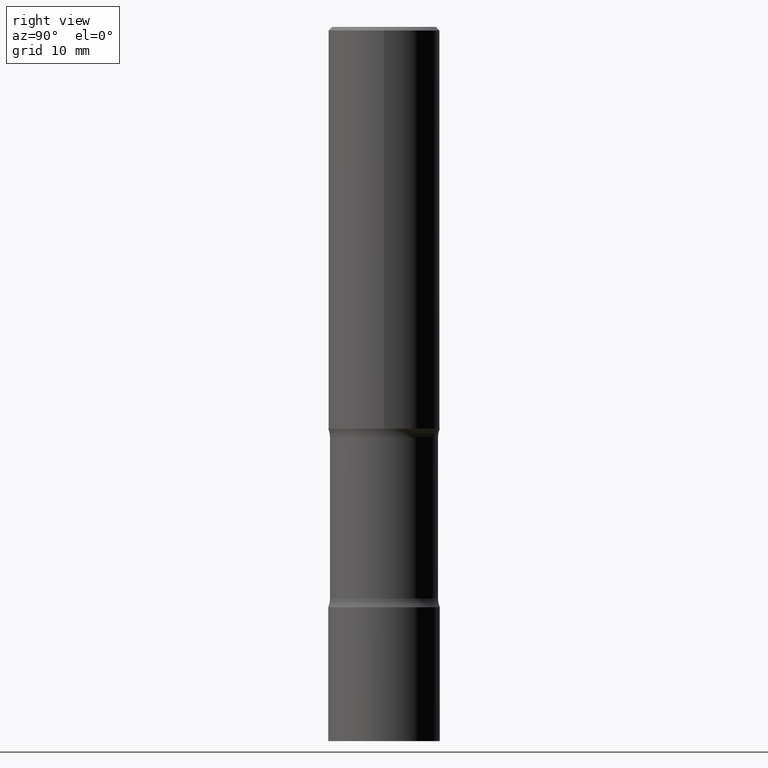
[diagram: clean part render]
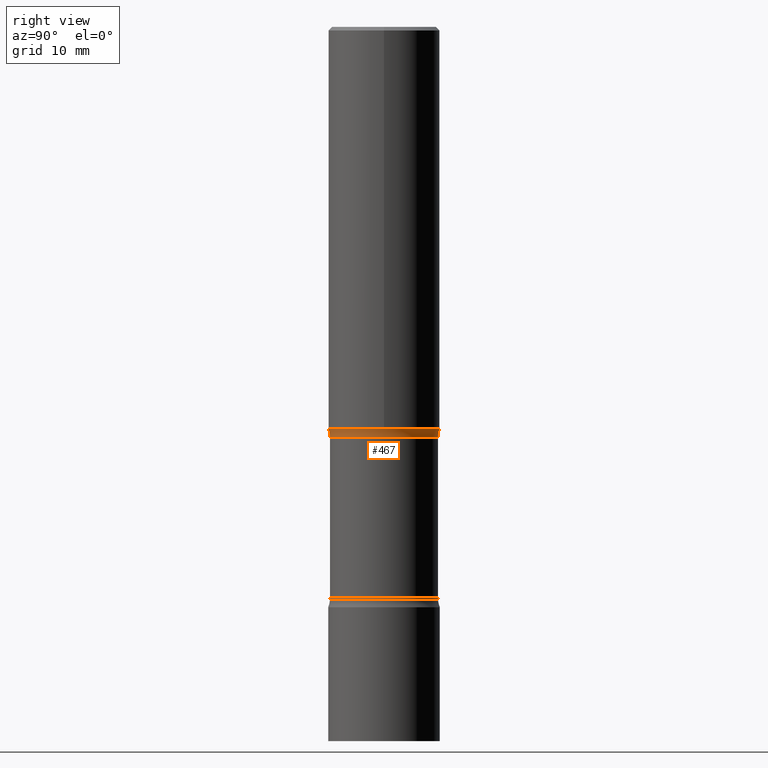
[diagram: same view with one face highlighted and labeled with its STEP entity id]
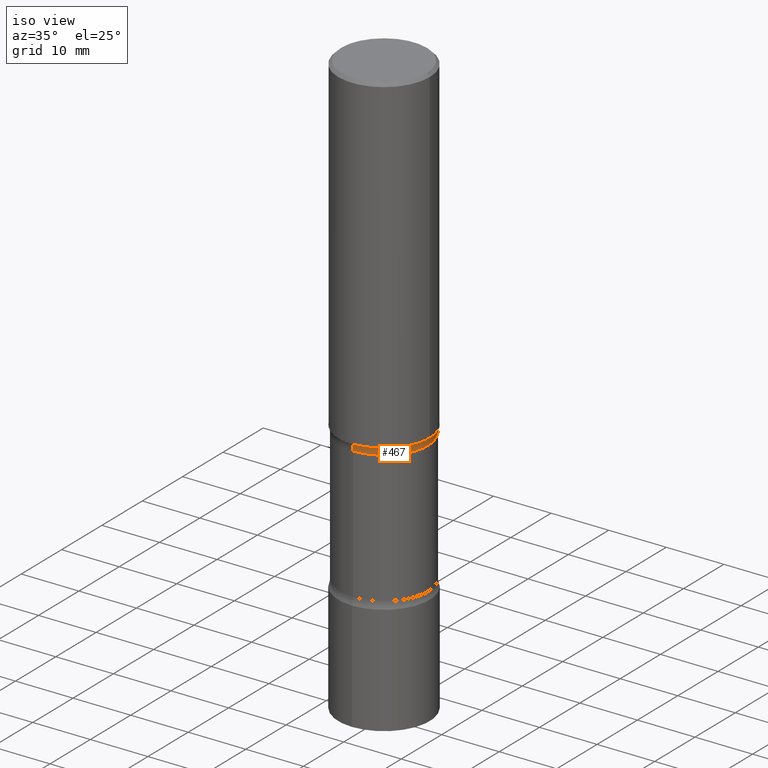
[diagram: same view with one face highlighted and labeled with its STEP entity id]
A machine part, right view. The second image highlights one B-rep face of the part: STEP entity #467.
A second angle (iso view) of the same face is appended — the face is thin or edge-on in the first view.
In plain terms, the highlighted toroidal blend (fillet) surface has major radius 10.8585 mm and minor (blend) radius 3.175 mm.
Its self-contained STEP definition (entity closure, byte-faithful):
#12 = DIRECTION ( 'NONE',  ( 6.982962677686265133E-15, 1.000000000000000000, -3.496765431890258892E-15 ) ) ;
#14 = EDGE_LOOP ( 'NONE', ( #345, #315, #500, #342 ) ) ;
#53 = CARTESIAN_POINT ( 'NONE',  ( 2.112346210000151452E-15, 0.3024999999999919420, -2.298989794855665014 ) ) ;
#84 = CIRCLE ( 'NONE', #307, 0.3024999999999996581 ) ;
#85 = CARTESIAN_POINT ( 'NONE',  ( 2.985216544710934791E-15, 0.4274999999999919420, -2.298989794855665458 ) ) ;
#102 = EDGE_CURVE ( 'NONE', #145, #459, #327, .T. ) ;
#127 = DIRECTION ( 'NONE',  ( -6.982962677686266711E-15, -1.000000000000000000, 0.000000000000000000 ) ) ;
#145 = VERTEX_POINT ( 'NONE', #262 ) ;
#148 = DIRECTION ( 'NONE',  ( 2.194409616694609199E-29, -3.851012387595239372E-15, -1.000000000000000000 ) ) ;
#152 = AXIS2_PLACEMENT_3D ( 'NONE', #353, #436, #241 ) ;
#162 = DIRECTION ( 'NONE',  ( -1.000000000000000000, 6.982962677686265922E-15, -4.883557194083112340E-29 ) ) ;
#166 = EDGE_CURVE ( 'NONE', #238, #174, #448, .T. ) ;
#174 = VERTEX_POINT ( 'NONE', #303 ) ;
#184 = CARTESIAN_POINT ( 'NONE',  ( 5.751948776958191309E-29, -7.498328648469489101E-15, -2.250000000000000444 ) ) ;
#185 = CARTESIAN_POINT ( 'NONE',  ( 5.859452453909356080E-29, -7.686988955324398625E-15, -2.298989794855664126 ) ) ;
#213 = FACE_OUTER_BOUND ( 'NONE', #14, .T. ) ;
#227 = DIRECTION ( 'NONE',  ( 1.000000000000000000, -6.860497997771530774E-15, 4.836395894143659074E-29 ) ) ;
#238 = VERTEX_POINT ( 'NONE', #53 ) ;
#241 = DIRECTION ( 'NONE',  ( 6.982962677686265922E-15, 1.000000000000000000, -3.851012387595239372E-15 ) ) ;
#253 = TOROIDAL_SURFACE ( 'NONE', #152, 0.4274999999999996581, 0.1250000000000000000 ) ;
#262 = CARTESIAN_POINT ( 'NONE',  ( -2.109603134314685008E-15, -0.3025000000000073186, -2.298989794855662794 ) ) ;
#281 = EDGE_CURVE ( 'NONE', #174, #459, #481, .T. ) ;
#284 = CARTESIAN_POINT ( 'NONE',  ( -2.143905624303543265E-15, -0.3125000000000072720, -2.249999999999999112 ) ) ;
#303 = CARTESIAN_POINT ( 'NONE',  ( 2.182175836777013567E-15, 0.3124999999999922284, -2.250000000000001332 ) ) ;
#307 = AXIS2_PLACEMENT_3D ( 'NONE', #185, #148, #399 ) ;
#315 = ORIENTED_EDGE ( 'NONE', *, *, #445, .F. ) ;
#327 = CIRCLE ( 'NONE', #382, 0.1250000000000000000 ) ;
#335 = AXIS2_PLACEMENT_3D ( 'NONE', #85, #162, #127 ) ;
#342 = ORIENTED_EDGE ( 'NONE', *, *, #281, .T. ) ;
#345 = ORIENTED_EDGE ( 'NONE', *, *, #102, .F. ) ;
#353 = CARTESIAN_POINT ( 'NONE',  ( 5.860562736318363041E-29, -7.685398967721348448E-15, -2.298989794855663682 ) ) ;
#360 = AXIS2_PLACEMENT_3D ( 'NONE', #184, #440, #12 ) ;
#382 = AXIS2_PLACEMENT_3D ( 'NONE', #412, #227, #391 ) ;
#391 = DIRECTION ( 'NONE',  ( 6.860497997771529985E-15, 1.000000000000000000, 0.000000000000000000 ) ) ;
#399 = DIRECTION ( 'NONE',  ( 6.982962677686264344E-15, 1.000000000000000000, -3.612360983357707569E-15 ) ) ;
#412 = CARTESIAN_POINT ( 'NONE',  ( -2.932862894047268196E-15, -0.4275000000000073741, -2.298989794855662350 ) ) ;
#436 = DIRECTION ( 'NONE',  ( 2.194409616694609199E-29, -3.851012387595239372E-15, -1.000000000000000000 ) ) ;
#440 = DIRECTION ( 'NONE',  ( 2.194409616694609199E-29, -3.851012387595239372E-15, -1.000000000000000000 ) ) ;
#445 = EDGE_CURVE ( 'NONE', #238, #145, #84, .T. ) ;
#448 = CIRCLE ( 'NONE', #335, 0.1250000000000000000 ) ;
#459 = VERTEX_POINT ( 'NONE', #284 ) ;
#467 = ADVANCED_FACE ( 'NONE', ( #213 ), #253, .F. ) ;
#481 = CIRCLE ( 'NONE', #360, 0.3124999999999998335 ) ;
#500 = ORIENTED_EDGE ( 'NONE', *, *, #166, .T. ) ;